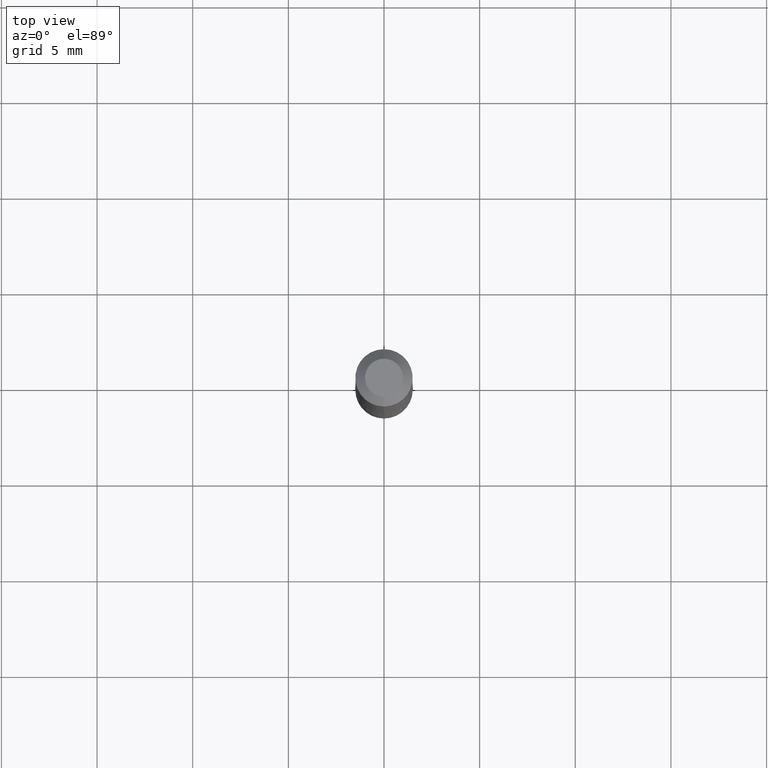
[diagram: clean part render]
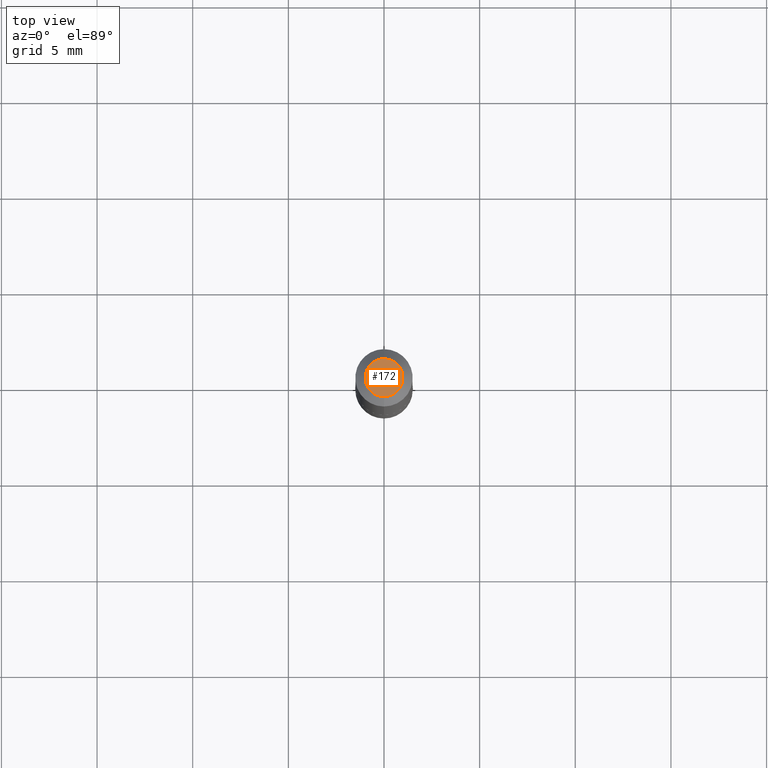
[diagram: same view with one face highlighted and labeled with its STEP entity id]
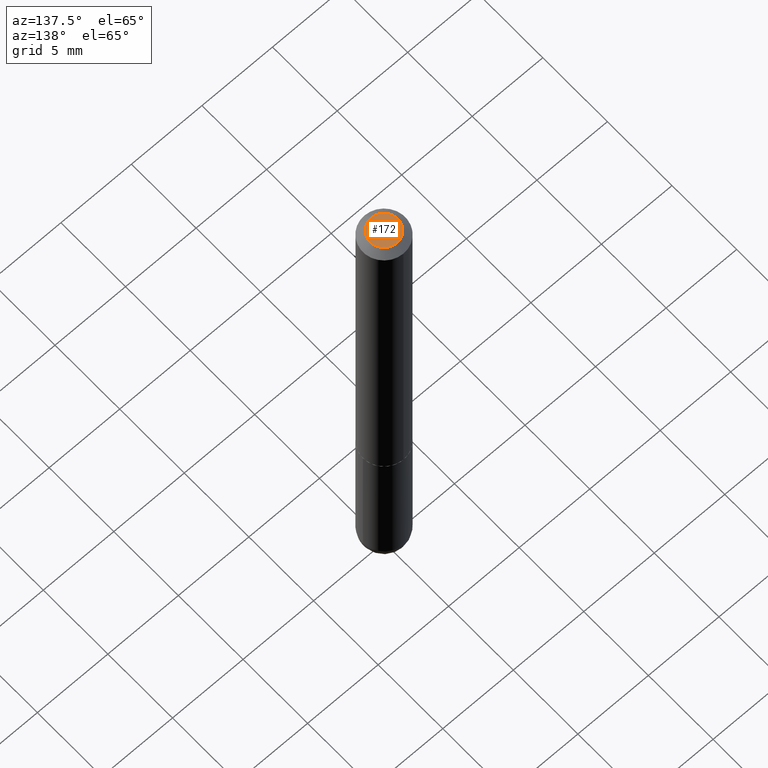
[diagram: same view with one face highlighted and labeled with its STEP entity id]
A machine part, top view. The second image highlights one B-rep face of the part: STEP entity #172.
A second angle (auxiliary view) of the same face is appended — the face is thin or edge-on in the first view.
In plain terms, the highlighted planar face has unit normal (0, -0, -1).
Its self-contained STEP definition (entity closure, byte-faithful):
#39 = AXIS2_PLACEMENT_3D ( 'NONE', #372, #297, #390 ) ;
#77 = CARTESIAN_POINT ( 'NONE',  ( 3.907277292852995132E-45, -5.509372769378781280E-31, -1.587869544120737693E-16 ) ) ;
#85 = ORIENTED_EDGE ( 'NONE', *, *, #409, .T. ) ;
#115 = CIRCLE ( 'NONE', #246, 0.03905000000000016097 ) ;
#127 = PLANE ( 'NONE',  #182 ) ;
#130 = CARTESIAN_POINT ( 'NONE',  ( 2.726846925636498029E-16, 0.03905000000000016097, -2.148838312095037302E-16 ) ) ;
#164 = CARTESIAN_POINT ( 'NONE',  ( 3.425143193405121643E-16, 0.03905000000000016097, -2.942773084155405902E-16 ) ) ;
#172 = ADVANCED_FACE ( 'NONE', ( #258 ), #127, .F. ) ;
#179 = DIRECTION ( 'NONE',  ( -6.982962677686265922E-15, -1.000000000000000000, 3.469663354762261627E-15 ) ) ;
#182 = AXIS2_PLACEMENT_3D ( 'NONE', #130, #386, #318 ) ;
#190 = VERTEX_POINT ( 'NONE', #164 ) ;
#203 = CARTESIAN_POINT ( 'NONE',  ( -3.365074267906939806E-16, -0.03905000000000016097, -2.329660040860689912E-17 ) ) ;
#241 = ORIENTED_EDGE ( 'NONE', *, *, #399, .T. ) ;
#246 = AXIS2_PLACEMENT_3D ( 'NONE', #77, #392, #179 ) ;
#258 = FACE_OUTER_BOUND ( 'NONE', #306, .T. ) ;
#297 = DIRECTION ( 'NONE',  ( -2.460704223039053504E-29, 3.469663354762261233E-15, 1.000000000000000000 ) ) ;
#304 = CIRCLE ( 'NONE', #39, 0.03905000000000016097 ) ;
#306 = EDGE_LOOP ( 'NONE', ( #241, #85 ) ) ;
#318 = DIRECTION ( 'NONE',  ( 6.982962677686265922E-15, 1.000000000000000000, -3.469663354762261233E-15 ) ) ;
#372 = CARTESIAN_POINT ( 'NONE',  ( 3.907277292852995132E-45, -5.509372769378781280E-31, -1.587869544120737693E-16 ) ) ;
#373 = VERTEX_POINT ( 'NONE', #203 ) ;
#386 = DIRECTION ( 'NONE',  ( 2.460704223039053224E-29, -3.469663354762261233E-15, -1.000000000000000000 ) ) ;
#390 = DIRECTION ( 'NONE',  ( -6.982962677686265922E-15, -1.000000000000000000, 3.469663354762261627E-15 ) ) ;
#392 = DIRECTION ( 'NONE',  ( -2.460704223039053504E-29, 3.469663354762261233E-15, 1.000000000000000000 ) ) ;
#399 = EDGE_CURVE ( 'NONE', #190, #373, #115, .T. ) ;
#409 = EDGE_CURVE ( 'NONE', #373, #190, #304, .T. ) ;